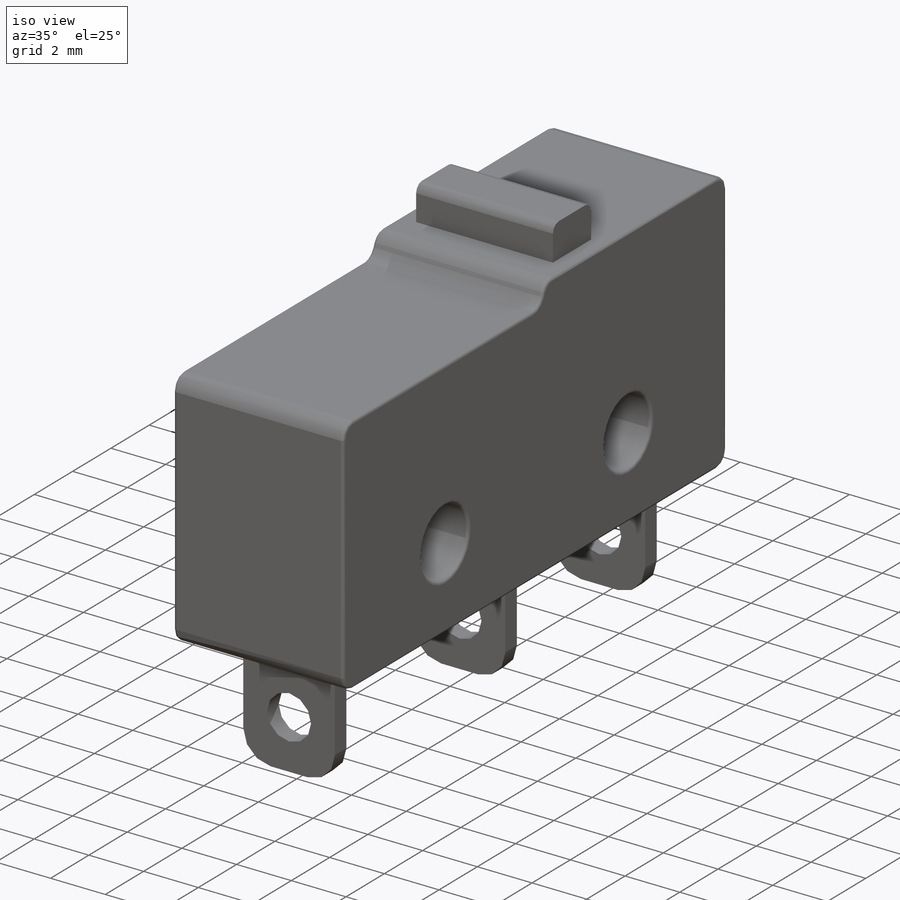
[diagram: iso view]
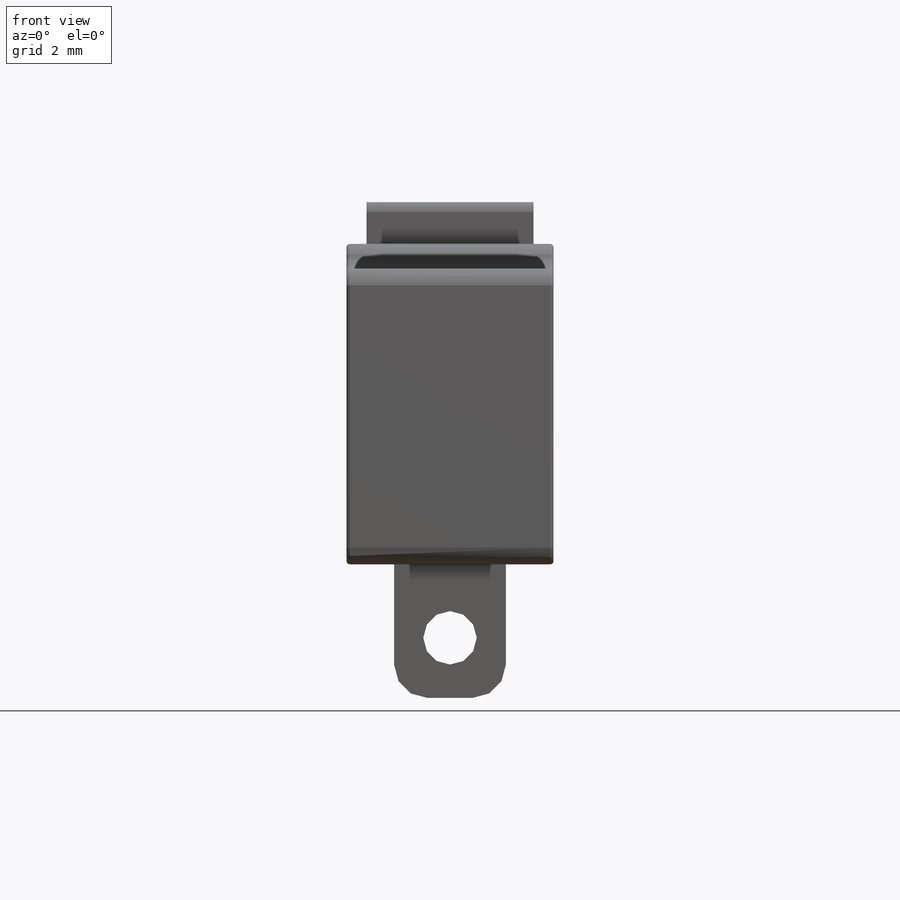
[diagram: front view]
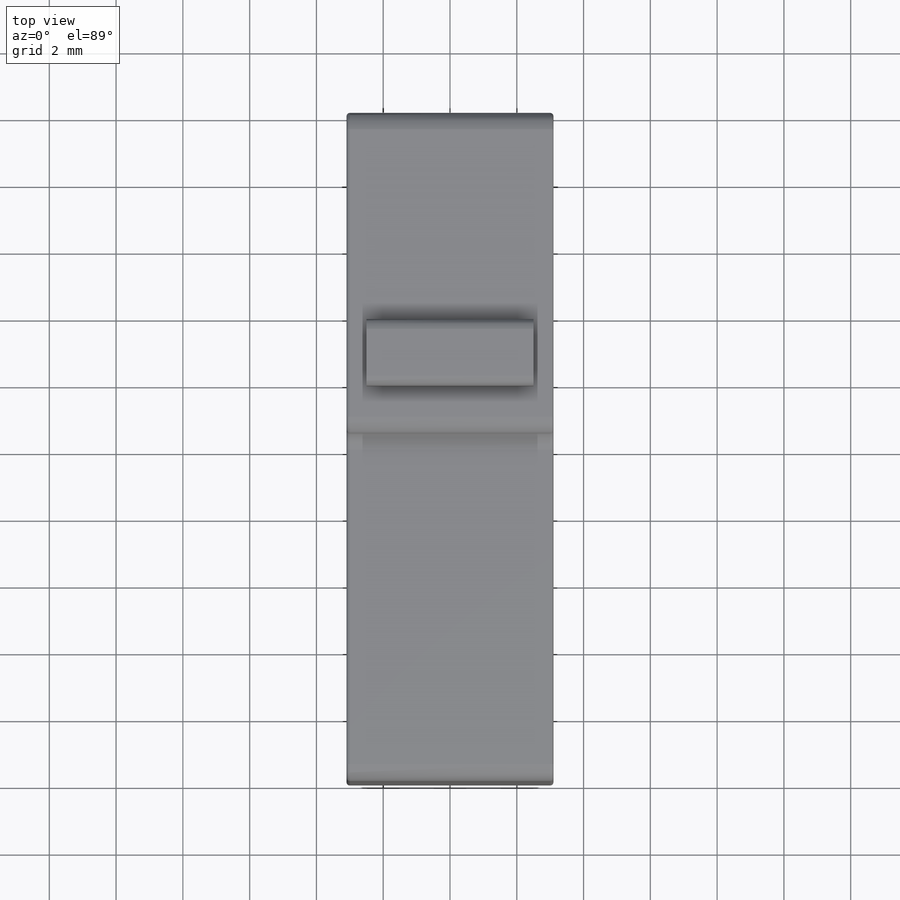
[diagram: top view]
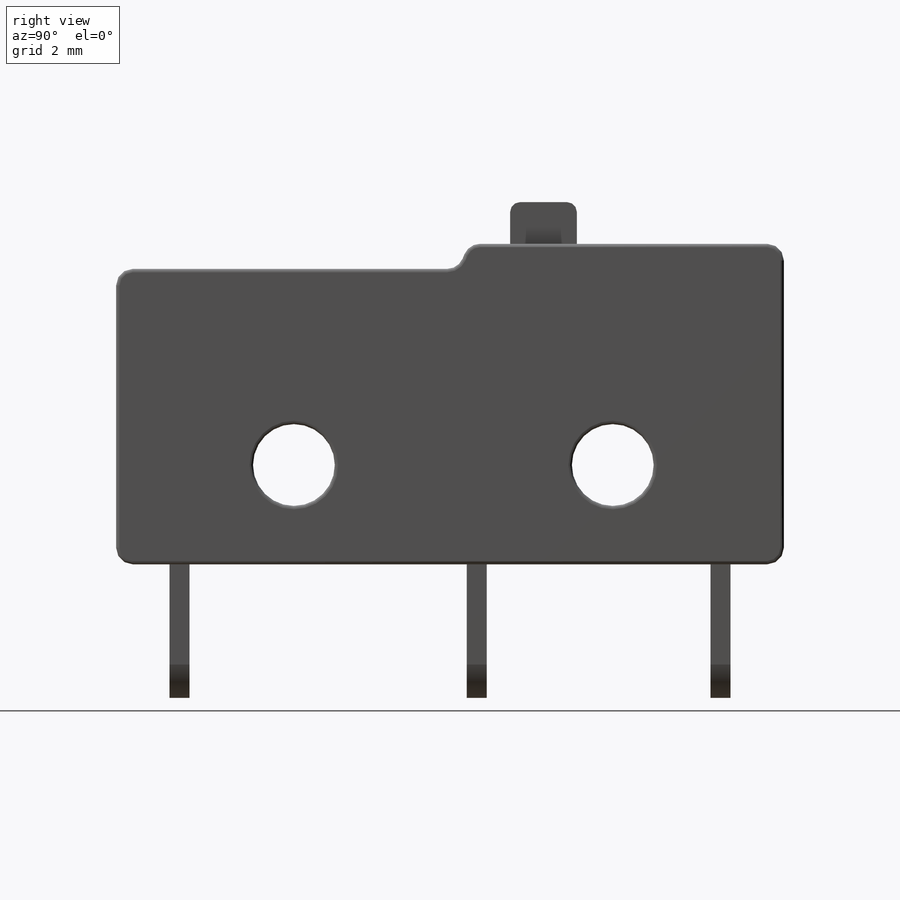
[diagram: right view]
SOLIDWORKS PART (.sldprt)
format: sldprt  version: not decoded by parser v0  size: 348,672 bytes
history: native  units: mm
features: sketch x5, extrude x3, fillet x3, cut_extrude x2, material x1 (+13 scaffold rows collapsed)
feature tree (27):
  scaffold x13  (default folders/planes/origin — collapsed)
  material  "Material <not specified>"
  sketch  "Sketch1"  dims[D1=20.0mm D2=9.6mm D3=0.75mm D4=9.75mm]
  extrude  "Boss-Extrude1"  Depth=6.2mm
  sketch  "Sketch2"  dims[c1.D1=~3.038592mm c1.D2=2.45mm c1.D4=2.45mm c1.D3=2.45mm c1.D5=2.45mm c2.D1=12.0mm c3.D1=12.0mm c3.D3=1.75mm c3.D4=4.1mm c4.D3=1.75mm c4.D5=3.9mm]
  cut_extrude  "Cut-Extrude4"  [1 undecoded]
  fillet  "Fillet1"  Radius=0.5mm
  fillet  "Fillet2"  Radius=0.1mm
  sketch  "Sketch3"  dims[D1=0.6mm D2=3.35mm D3=1.6mm D4=8.3mm D5=6.7mm]
  extrude  "Boss-Extrude2"  Depth=4mm
  sketch  "Sketch4"  dims[D1=1.6mm D2=1.0mm]
  cut_extrude  "Cut-Extrude5"  [1 undecoded]
  fillet  "Fillet3"  Radius=1mm
  sketch  "Sketch5"  dims[D1=0.3mm D2=1.25mm D3=2.0mm D4=6.2mm]
  extrude  "Boss-Extrude3"  Depth=5mm
decode coverage: 11 of 13 modeling features carry decoded parameters
note: ~ marks probable driven/reference dimensions
note: 2 parameter values undecoded
note: suppression state not decoded; provenance and decode notes live in map.json
